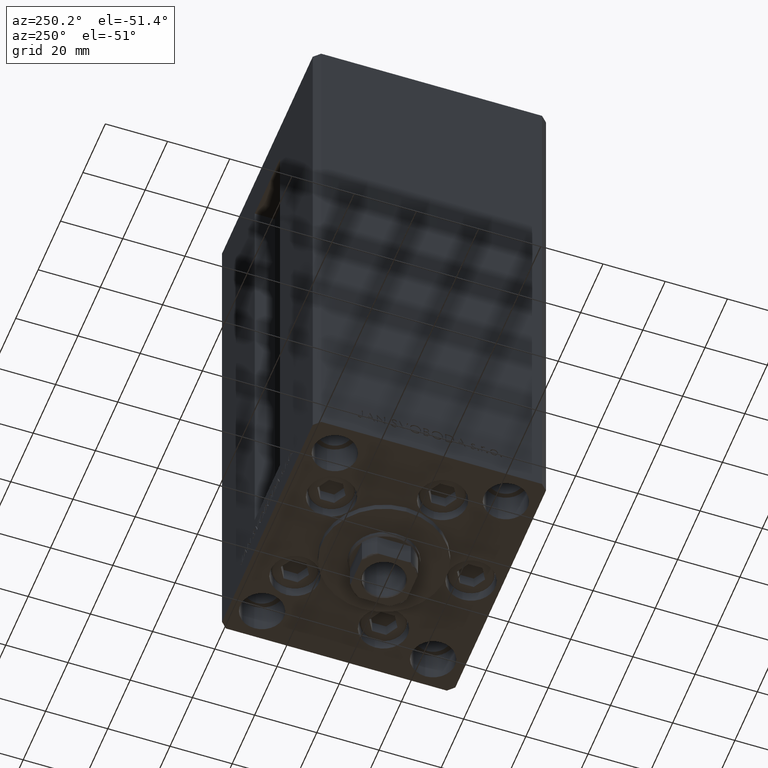
[diagram: clean part render]
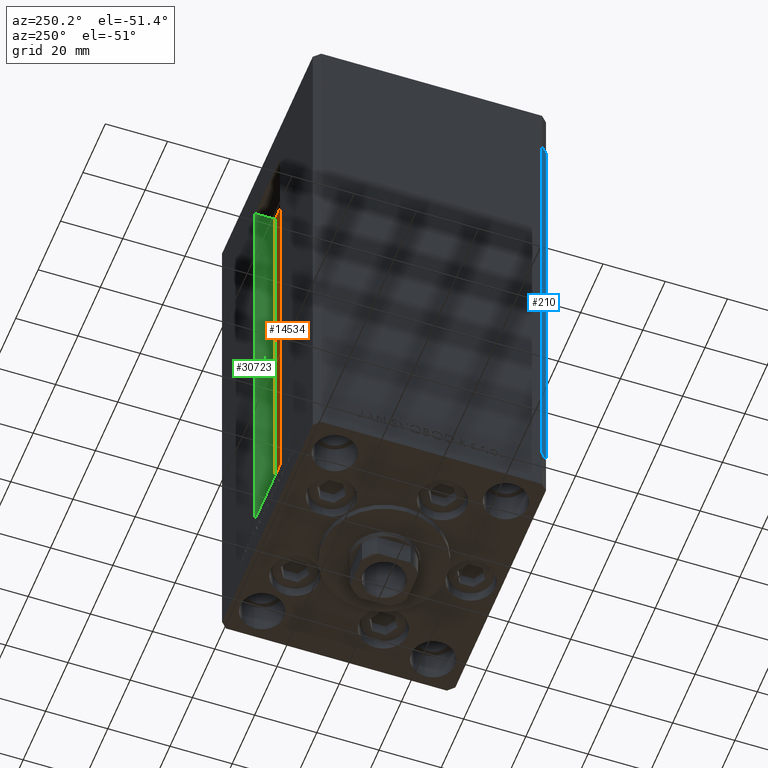
[diagram: same view with three faces highlighted in distinct colors, each labeled with its STEP entity id]
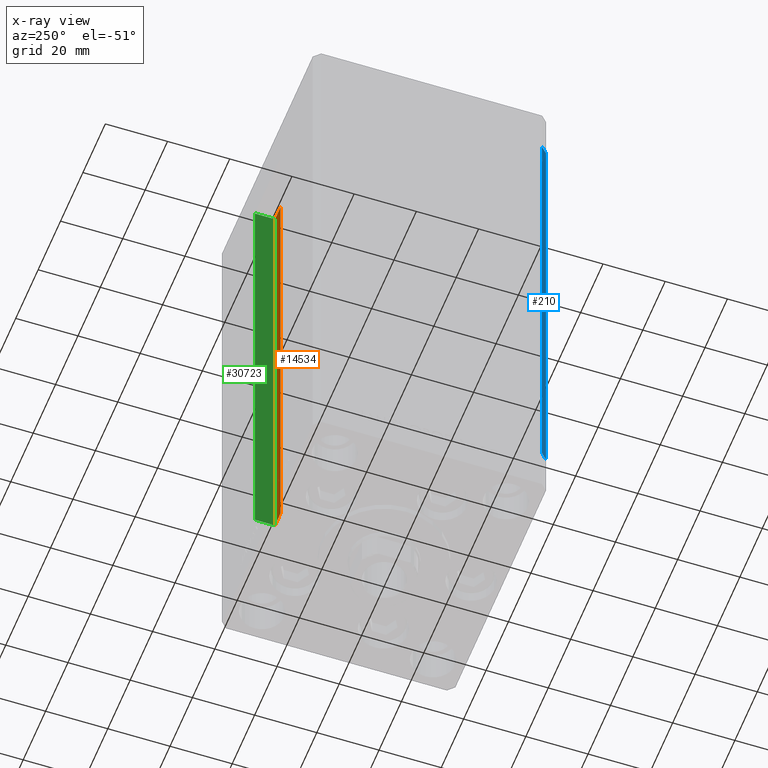
[diagram: x-ray of the same camera — body ghosted, the three highlighted faces saturated]
A machine part, auxiliary view with three faces highlighted in distinct colors.
The next image is the same camera in x-ray (body ghosted, the three faces saturated) — at least one of them is partly hidden behind the body in this view.
Their STEP definitions:

[orange] entity #14534 — the highlighted planar face has unit normal (0, -1, 0).
#892 = VERTEX_POINT ( 'NONE', #3534 ) ;
#2069 = DIRECTION ( 'NONE',  ( -0.000000000000000000, -0.000000000000000000, 1.000000000000000000 ) ) ;
#2653 = VERTEX_POINT ( 'NONE', #48879 ) ;
#2960 = ORIENTED_EDGE ( 'NONE', *, *, #22465, .F. ) ;
#3534 = CARTESIAN_POINT ( 'NONE',  ( 11.25000000000000000, 30.99999999999999289, 0.000000000000000000 ) ) ;
#5973 = CARTESIAN_POINT ( 'NONE',  ( 6.183333333333999704, 30.99999999999999289, 0.000000000000000000 ) ) ;
#7440 = VECTOR ( 'NONE', #2069, 1000.000000000000000 ) ;
#9449 = DIRECTION ( 'NONE',  ( 0.000000000000000000, -0.000000000000000000, -1.000000000000000000 ) ) ;
#10171 = ORIENTED_EDGE ( 'NONE', *, *, #11391, .F. ) ;
#10239 = LINE ( 'NONE', #21200, #12076 ) ;
#11391 = EDGE_CURVE ( 'NONE', #2653, #892, #10239, .T. ) ;
#12076 = VECTOR ( 'NONE', #24945, 1000.000000000000000 ) ;
#13189 = DIRECTION ( 'NONE',  ( 0.000000000000000000, -1.000000000000000000, 0.000000000000000000 ) ) ;
#14534 = ADVANCED_FACE ( 'NONE', ( #40594 ), #36354, .F. ) ;
#15029 = EDGE_CURVE ( 'NONE', #892, #34915, #28970, .T. ) ;
#15753 = VECTOR ( 'NONE', #36732, 1000.000000000000000 ) ;
#16191 = CARTESIAN_POINT ( 'NONE',  ( 11.25000000000000000, 30.99999999999999289, 148.5000000000000000 ) ) ;
#17527 = VECTOR ( 'NONE', #26367, 1000.000000000000000 ) ;
#20410 = ORIENTED_EDGE ( 'NONE', *, *, #15029, .F. ) ;
#21200 = CARTESIAN_POINT ( 'NONE',  ( 6.183333333333999704, 30.99999999999999289, 0.000000000000000000 ) ) ;
#21360 = ORIENTED_EDGE ( 'NONE', *, *, #31565, .T. ) ;
#22465 = EDGE_CURVE ( 'NONE', #34915, #48888, #33745, .T. ) ;
#22862 = EDGE_LOOP ( 'NONE', ( #20410, #10171, #21360, #2960 ) ) ;
#24945 = DIRECTION ( 'NONE',  ( 1.000000000000000000, 0.000000000000000000, 0.000000000000000000 ) ) ;
#25725 = AXIS2_PLACEMENT_3D ( 'NONE', #5973, #13189, #9449 ) ;
#26367 = DIRECTION ( 'NONE',  ( -0.000000000000000000, -0.000000000000000000, 1.000000000000000000 ) ) ;
#28970 = LINE ( 'NONE', #32693, #7440 ) ;
#31565 = EDGE_CURVE ( 'NONE', #2653, #48888, #41078, .T. ) ;
#32693 = CARTESIAN_POINT ( 'NONE',  ( 11.25000000000000000, 30.99999999999999289, 0.000000000000000000 ) ) ;
#32750 = CARTESIAN_POINT ( 'NONE',  ( 0.000000000000000000, 30.99999999999999289, 148.5000000000000000 ) ) ;
#33745 = LINE ( 'NONE', #32750, #15753 ) ;
#34915 = VERTEX_POINT ( 'NONE', #16191 ) ;
#36313 = CARTESIAN_POINT ( 'NONE',  ( 6.183333333333999704, 30.99999999999999289, 148.5000000000000000 ) ) ;
#36354 = PLANE ( 'NONE',  #25725 ) ;
#36732 = DIRECTION ( 'NONE',  ( -1.000000000000000000, 0.000000000000000000, 0.000000000000000000 ) ) ;
#37330 = CARTESIAN_POINT ( 'NONE',  ( 6.183333333333999704, 30.99999999999999289, 0.000000000000000000 ) ) ;
#40594 = FACE_OUTER_BOUND ( 'NONE', #22862, .T. ) ;
#41078 = LINE ( 'NONE', #37330, #17527 ) ;
#48879 = CARTESIAN_POINT ( 'NONE',  ( 6.183333333333999704, 30.99999999999999289, 0.000000000000000000 ) ) ;
#48888 = VERTEX_POINT ( 'NONE', #36313 ) ;

[blue] entity #210 — the highlighted planar face has unit normal (0.7071, 0.7071, 0).
#210 = ADVANCED_FACE ( 'NONE', ( #48892 ), #7289, .F. ) ;
#338 = LINE ( 'NONE', #26478, #36781 ) ;
#754 = CARTESIAN_POINT ( 'NONE',  ( -42.49999999999998579, -35.50000000000000711, 0.000000000000000000 ) ) ;
#1991 = CARTESIAN_POINT ( 'NONE',  ( -42.49999999999998579, -35.50000000000000711, 148.5000000000000000 ) ) ;
#2920 = VECTOR ( 'NONE', #7138, 1000.000000000000114 ) ;
#6075 = ORIENTED_EDGE ( 'NONE', *, *, #11252, .T. ) ;
#7052 = CARTESIAN_POINT ( 'NONE',  ( -40.49999999999998579, -37.50000000000000711, 0.000000000000000000 ) ) ;
#7138 = DIRECTION ( 'NONE',  ( 0.7071067811865474617, -0.7071067811865474617, 0.000000000000000000 ) ) ;
#7289 = PLANE ( 'NONE',  #13429 ) ;
#9442 = EDGE_CURVE ( 'NONE', #17514, #40806, #27871, .T. ) ;
#9845 = ORIENTED_EDGE ( 'NONE', *, *, #9442, .F. ) ;
#11252 = EDGE_CURVE ( 'NONE', #28072, #31493, #338, .T. ) ;
#12587 = DIRECTION ( 'NONE',  ( 0.7071067811865474617, -0.7071067811865474617, 0.000000000000000000 ) ) ;
#13429 = AXIS2_PLACEMENT_3D ( 'NONE', #22478, #37424, #45632 ) ;
#14843 = CARTESIAN_POINT ( 'NONE',  ( -40.49999999999998579, -37.50000000000000711, 148.5000000000000000 ) ) ;
#15987 = ORIENTED_EDGE ( 'NONE', *, *, #46457, .T. ) ;
#16675 = CARTESIAN_POINT ( 'NONE',  ( -42.49999999999998579, -35.50000000000000711, 0.000000000000000000 ) ) ;
#16912 = VECTOR ( 'NONE', #12587, 1000.000000000000114 ) ;
#17514 = VERTEX_POINT ( 'NONE', #14843 ) ;
#19678 = LINE ( 'NONE', #754, #2920 ) ;
#19830 = LINE ( 'NONE', #46719, #16912 ) ;
#22478 = CARTESIAN_POINT ( 'NONE',  ( -42.49999999999998579, -35.50000000000000711, 148.5000000000000000 ) ) ;
#22736 = DIRECTION ( 'NONE',  ( -0.000000000000000000, -0.000000000000000000, -1.000000000000000000 ) ) ;
#23077 = ORIENTED_EDGE ( 'NONE', *, *, #39381, .F. ) ;
#26356 = VECTOR ( 'NONE', #43058, 1000.000000000000000 ) ;
#26478 = CARTESIAN_POINT ( 'NONE',  ( -42.49999999999998579, -35.50000000000000711, 148.5000000000000000 ) ) ;
#27871 = LINE ( 'NONE', #46782, #26356 ) ;
#28072 = VERTEX_POINT ( 'NONE', #1991 ) ;
#29611 = EDGE_LOOP ( 'NONE', ( #15987, #9845, #23077, #6075 ) ) ;
#31493 = VERTEX_POINT ( 'NONE', #16675 ) ;
#36781 = VECTOR ( 'NONE', #22736, 1000.000000000000000 ) ;
#37424 = DIRECTION ( 'NONE',  ( 0.7071067811865475727, 0.7071067811865475727, -0.000000000000000000 ) ) ;
#39381 = EDGE_CURVE ( 'NONE', #28072, #17514, #19830, .T. ) ;
#40806 = VERTEX_POINT ( 'NONE', #7052 ) ;
#43058 = DIRECTION ( 'NONE',  ( -0.000000000000000000, -0.000000000000000000, -1.000000000000000000 ) ) ;
#45632 = DIRECTION ( 'NONE',  ( -0.7071067811865474617, 0.7071067811865474617, 0.000000000000000000 ) ) ;
#46457 = EDGE_CURVE ( 'NONE', #31493, #40806, #19678, .T. ) ;
#46719 = CARTESIAN_POINT ( 'NONE',  ( -42.49999999999998579, -35.50000000000000711, 148.5000000000000000 ) ) ;
#46782 = CARTESIAN_POINT ( 'NONE',  ( -40.49999999999998579, -37.50000000000000711, 148.5000000000000000 ) ) ;
#48892 = FACE_OUTER_BOUND ( 'NONE', #29611, .T. ) ;

[green] entity #30723 — the highlighted planar face has unit normal (1, 0, 0).
#892 = VERTEX_POINT ( 'NONE', #3534 ) ;
#1791 = VECTOR ( 'NONE', #28224, 1000.000000000000000 ) ;
#2069 = DIRECTION ( 'NONE',  ( -0.000000000000000000, -0.000000000000000000, 1.000000000000000000 ) ) ;
#3534 = CARTESIAN_POINT ( 'NONE',  ( 11.25000000000000000, 30.99999999999999289, 0.000000000000000000 ) ) ;
#3622 = CARTESIAN_POINT ( 'NONE',  ( 11.25000000000000000, 37.50000000000000000, 0.000000000000000000 ) ) ;
#3697 = EDGE_CURVE ( 'NONE', #43913, #34019, #37742, .T. ) ;
#4174 = CARTESIAN_POINT ( 'NONE',  ( 11.25000000000000000, 30.99999999999999289, 0.000000000000000000 ) ) ;
#4884 = DIRECTION ( 'NONE',  ( 0.000000000000000000, 1.000000000000000000, 0.000000000000000000 ) ) ;
#6711 = DIRECTION ( 'NONE',  ( 0.000000000000000000, 0.000000000000000000, -1.000000000000000000 ) ) ;
#7440 = VECTOR ( 'NONE', #2069, 1000.000000000000000 ) ;
#13012 = CARTESIAN_POINT ( 'NONE',  ( 11.25000000000000000, 0.000000000000000000, 148.5000000000000000 ) ) ;
#14416 = FACE_OUTER_BOUND ( 'NONE', #21079, .T. ) ;
#14658 = ORIENTED_EDGE ( 'NONE', *, *, #3697, .F. ) ;
#15012 = VECTOR ( 'NONE', #19050, 1000.000000000000000 ) ;
#15029 = EDGE_CURVE ( 'NONE', #892, #34915, #28970, .T. ) ;
#15343 = CARTESIAN_POINT ( 'NONE',  ( 11.24999999999999289, 37.50000000000000000, 148.5000000000000000 ) ) ;
#16191 = CARTESIAN_POINT ( 'NONE',  ( 11.25000000000000000, 30.99999999999999289, 148.5000000000000000 ) ) ;
#18403 = CARTESIAN_POINT ( 'NONE',  ( 11.25000000000000000, 30.99999999999999289, 0.000000000000000000 ) ) ;
#19050 = DIRECTION ( 'NONE',  ( -0.000000000000000000, -0.000000000000000000, 1.000000000000000000 ) ) ;
#19108 = AXIS2_PLACEMENT_3D ( 'NONE', #18403, #29618, #6711 ) ;
#21079 = EDGE_LOOP ( 'NONE', ( #14658, #46524, #21328, #24811 ) ) ;
#21224 = LINE ( 'NONE', #13012, #1791 ) ;
#21328 = ORIENTED_EDGE ( 'NONE', *, *, #15029, .T. ) ;
#23346 = LINE ( 'NONE', #4174, #43904 ) ;
#24811 = ORIENTED_EDGE ( 'NONE', *, *, #35493, .F. ) ;
#28224 = DIRECTION ( 'NONE',  ( -0.000000000000000000, -1.000000000000000000, 0.000000000000000000 ) ) ;
#28970 = LINE ( 'NONE', #32693, #7440 ) ;
#29049 = CARTESIAN_POINT ( 'NONE',  ( 11.25000000000000000, 37.50000000000000000, 0.000000000000000000 ) ) ;
#29618 = DIRECTION ( 'NONE',  ( 1.000000000000000000, -0.000000000000000000, 0.000000000000000000 ) ) ;
#30723 = ADVANCED_FACE ( 'NONE', ( #14416 ), #36843, .F. ) ;
#32693 = CARTESIAN_POINT ( 'NONE',  ( 11.25000000000000000, 30.99999999999999289, 0.000000000000000000 ) ) ;
#34019 = VERTEX_POINT ( 'NONE', #15343 ) ;
#34915 = VERTEX_POINT ( 'NONE', #16191 ) ;
#35493 = EDGE_CURVE ( 'NONE', #34019, #34915, #21224, .T. ) ;
#36843 = PLANE ( 'NONE',  #19108 ) ;
#37742 = LINE ( 'NONE', #3622, #15012 ) ;
#39314 = EDGE_CURVE ( 'NONE', #892, #43913, #23346, .T. ) ;
#43904 = VECTOR ( 'NONE', #4884, 1000.000000000000000 ) ;
#43913 = VERTEX_POINT ( 'NONE', #29049 ) ;
#46524 = ORIENTED_EDGE ( 'NONE', *, *, #39314, .F. ) ;